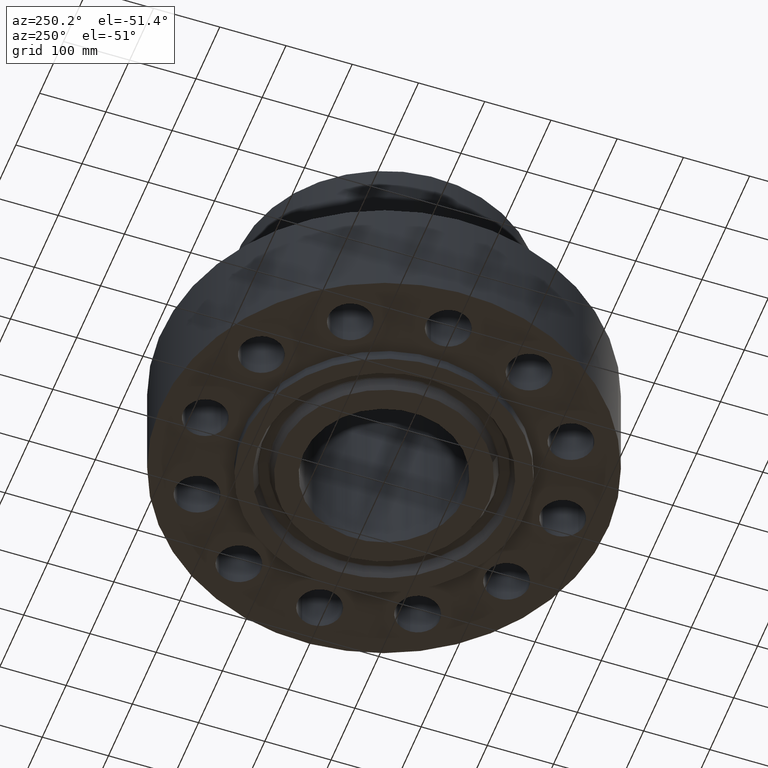
[diagram: clean part render]
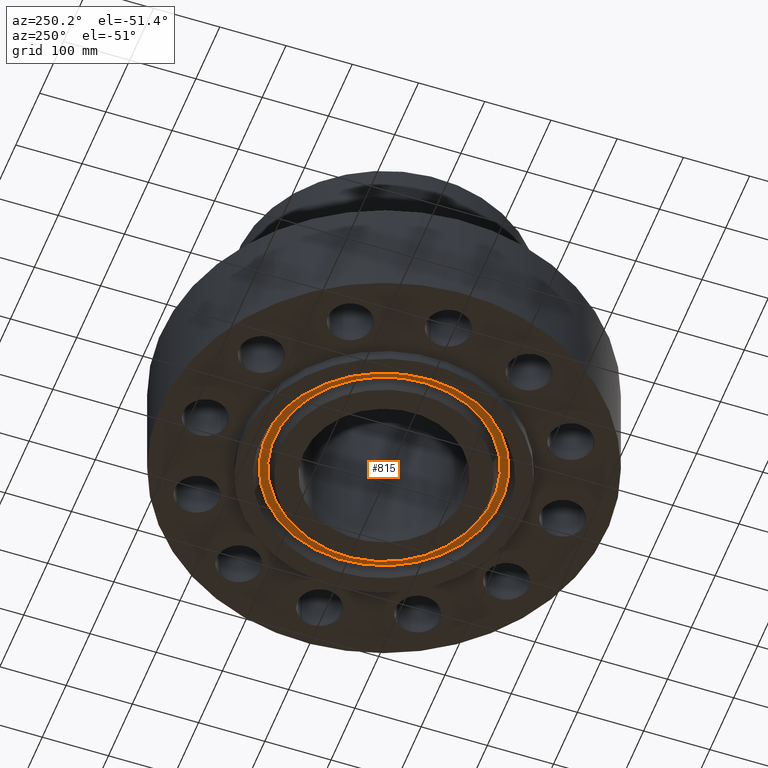
[diagram: same view with one face highlighted and labeled with its STEP entity id]
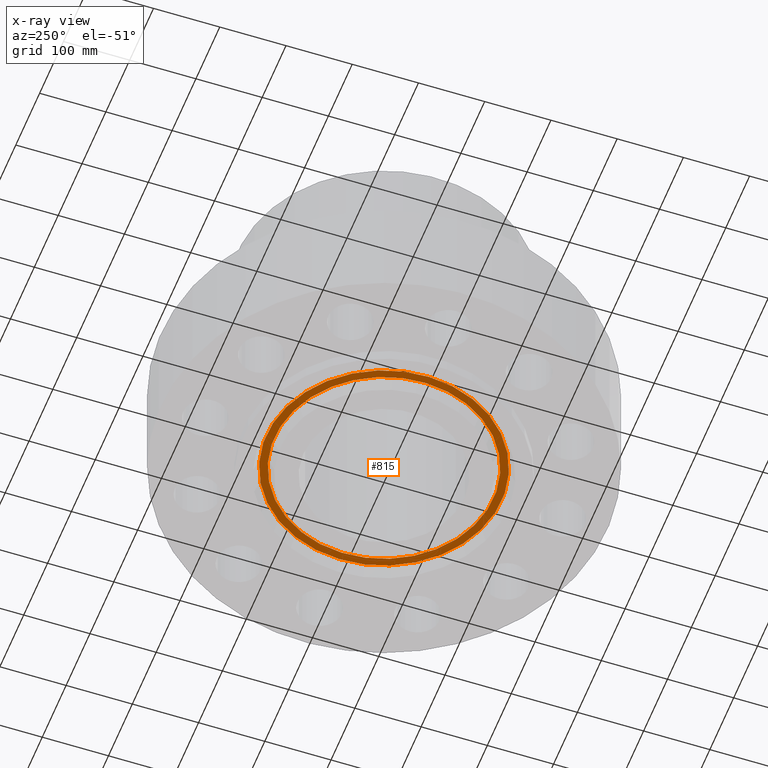
[diagram: x-ray of the same camera — body ghosted, the highlighted face saturated]
A machine part, auxiliary view. The second image highlights one B-rep face of the part: STEP entity #815.
The next image is the same camera in x-ray: the body ghosted, the highlighted face saturated — about 0% of this face is hidden behind the body in this view.
In plain terms, the highlighted planar face has unit normal (0, 0, -1).
Its self-contained STEP definition (entity closure, byte-faithful):
#78=AXIS2_PLACEMENT_3D('Plane Axis2P3D',#75,#76,#77) ;
#764=AXIS2_PLACEMENT_3D('Circle Axis2P3D',#762,#763,$) ;
#783=AXIS2_PLACEMENT_3D('Circle Axis2P3D',#781,#782,$) ;
#795=AXIS2_PLACEMENT_3D('Circle Axis2P3D',#793,#794,$) ;
#804=AXIS2_PLACEMENT_3D('Circle Axis2P3D',#802,#803,$) ;
#75=CARTESIAN_POINT('Axis2P3D Location',(0.,6.51025591633,0.)) ;
#759=CARTESIAN_POINT('Vertex',(-3.12118294914,-5.71328706562,3.1470888887E-016)) ;
#762=CARTESIAN_POINT('Axis2P3D Location',(0.,0.,3.1470888887E-016)) ;
#766=CARTESIAN_POINT('Vertex',(3.12118294914,5.71328706562,3.1470888887E-016)) ;
#781=CARTESIAN_POINT('Axis2P3D Location',(0.,0.,3.1470888887E-016)) ;
#793=CARTESIAN_POINT('Axis2P3D Location',(0.,0.,0.)) ;
#797=CARTESIAN_POINT('Vertex',(-3.35106182204,-6.13407751995,-2.09805925913E-016)) ;
#799=CARTESIAN_POINT('Vertex',(3.35106182204,6.13407751995,-2.09805925913E-016)) ;
#802=CARTESIAN_POINT('Axis2P3D Location',(0.,0.,0.)) ;
#76=DIRECTION('Axis2P3D Direction',(0.,0.,-0.0393700787402)) ;
#77=DIRECTION('Axis2P3D XDirection',(0.0393700787402,0.,0.)) ;
#763=DIRECTION('Axis2P3D Direction',(0.,0.,-0.0393700787402)) ;
#782=DIRECTION('Axis2P3D Direction',(0.,0.,-0.0393700787402)) ;
#794=DIRECTION('Axis2P3D Direction',(0.,0.,-0.0393700787402)) ;
#803=DIRECTION('Axis2P3D Direction',(0.,0.,-0.0393700787402)) ;
#808=ORIENTED_EDGE('',*,*,#801,.T.) ;
#809=ORIENTED_EDGE('',*,*,#806,.T.) ;
#812=ORIENTED_EDGE('',*,*,#785,.F.) ;
#813=ORIENTED_EDGE('',*,*,#768,.F.) ;
#814=FACE_BOUND('',#811,.T.) ;
#815=ADVANCED_FACE('PartBody',(#810,#814),#79,.T.) ;
#765=CIRCLE('generated circle',#764,6.51025591633) ;
#784=CIRCLE('generated circle',#783,6.51025591633) ;
#796=CIRCLE('generated circle',#795,6.98974408372) ;
#805=CIRCLE('generated circle',#804,6.98974408372) ;
#768=EDGE_CURVE('',#760,#767,#765,.T.) ;
#785=EDGE_CURVE('',#767,#760,#784,.T.) ;
#801=EDGE_CURVE('',#798,#800,#796,.T.) ;
#806=EDGE_CURVE('',#800,#798,#805,.T.) ;
#807=EDGE_LOOP('',(#808,#809)) ;
#811=EDGE_LOOP('',(#812,#813)) ;
#810=FACE_OUTER_BOUND('',#807,.T.) ;
#79=PLANE('',#78) ;
#760=VERTEX_POINT('',#759) ;
#767=VERTEX_POINT('',#766) ;
#798=VERTEX_POINT('',#797) ;
#800=VERTEX_POINT('',#799) ;